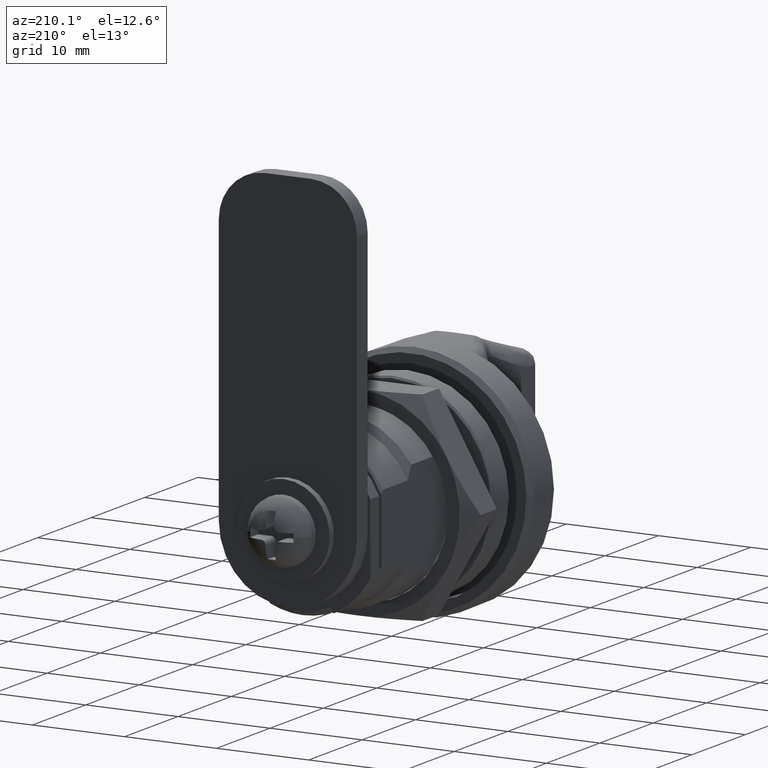
[diagram: clean part render]
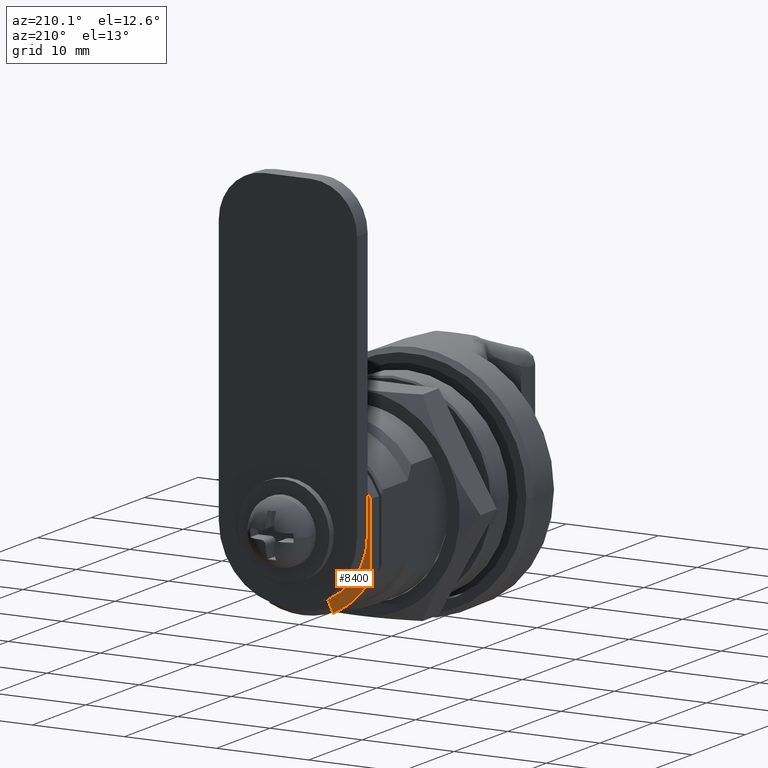
[diagram: same view with one face highlighted and labeled with its STEP entity id]
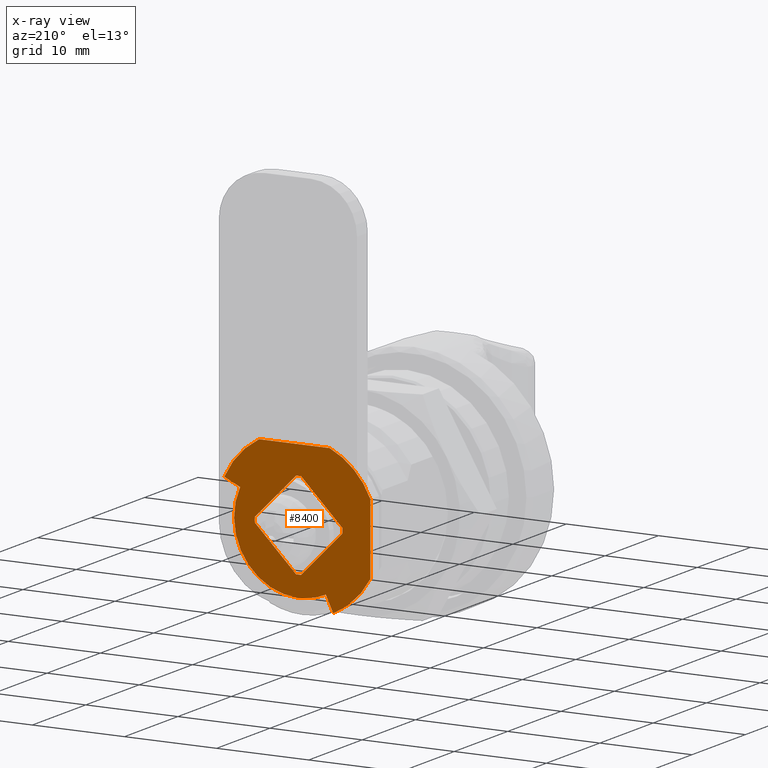
[diagram: x-ray of the same camera — body ghosted, the highlighted face saturated]
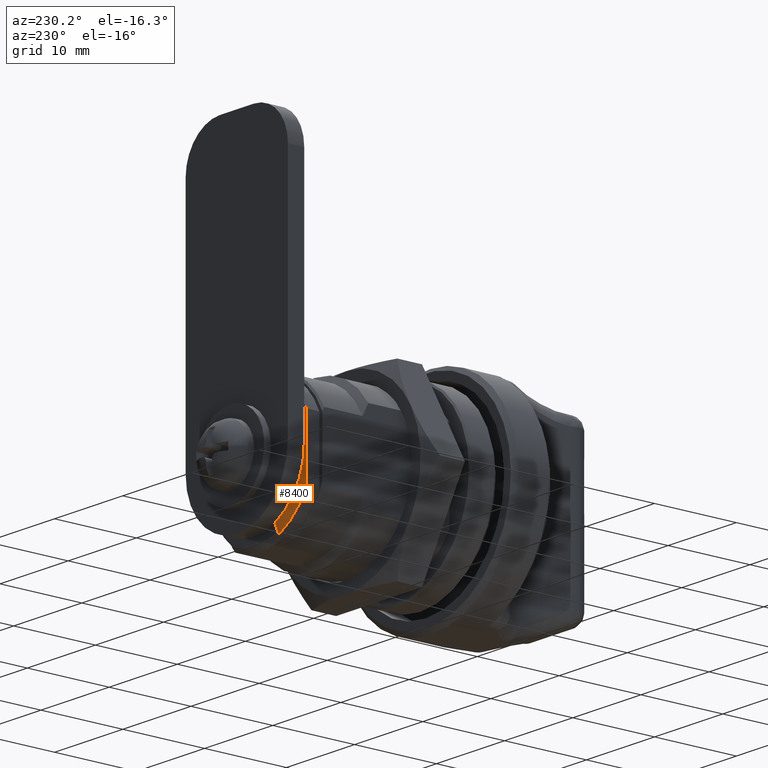
[diagram: same view with one face highlighted and labeled with its STEP entity id]
A machine part, auxiliary view. The second image highlights one B-rep face of the part: STEP entity #8400.
The next image is the same camera in x-ray: the body ghosted, the highlighted face saturated — about 0% of this face is hidden behind the body in this view.
A second angle (auxiliary view) of the same face is appended — the face is thin or edge-on in the first view.
In plain terms, the highlighted planar face has unit normal (0, -1, 0).
Its self-contained STEP definition (entity closure, byte-faithful):
#111 = ORIENTED_EDGE ( 'NONE', *, *, #915, .F. ) ;
#127 = CARTESIAN_POINT ( 'NONE',  ( 17.39999999999997000, -5.684341886080000600E-014, 4.263256414559999700E-014 ) ) ;
#185 = CARTESIAN_POINT ( 'NONE',  ( 17.39999999999997000, 0.2786377130436523100, -4.741820433639349000 ) ) ;
#284 = VERTEX_POINT ( 'NONE', #6167 ) ;
#434 = DIRECTION ( 'NONE',  ( -0.0000000000000000000, 0.4226182617408121800, -0.9063077870365973100 ) ) ;
#453 = DIRECTION ( 'NONE',  ( -0.0000000000000000000, -0.7071067811865474600, -0.7071067811865474600 ) ) ;
#475 = DIRECTION ( 'NONE',  ( 0.0000000000000000000, 5.329070518200751400E-015, -1.000000000000000000 ) ) ;
#552 = DIRECTION ( 'NONE',  ( 0.0000000000000000000, 0.0000000000000000000, -1.000000000000000000 ) ) ;
#590 = CIRCLE ( 'NONE', #1668, 4.750000000000000000 ) ;
#638 = DIRECTION ( 'NONE',  ( 1.000000000000000000, -0.0000000000000000000, -0.0000000000000000000 ) ) ;
#725 = CIRCLE ( 'NONE', #2146, 4.750000000000000000 ) ;
#763 = LINE ( 'NONE', #1708, #9327 ) ;
#780 = CARTESIAN_POINT ( 'NONE',  ( 17.39999999999997000, -5.684341886080000600E-014, 4.263256414559999700E-014 ) ) ;
#901 = AXIS2_PLACEMENT_3D ( 'NONE', #9930, #4804, #10804 ) ;
#915 = EDGE_CURVE ( 'NONE', #8992, #284, #1140, .T. ) ;
#921 = VERTEX_POINT ( 'NONE', #2441 ) ;
#930 = CIRCLE ( 'NONE', #4331, 7.000000000000000900 ) ;
#943 = CARTESIAN_POINT ( 'NONE',  ( 17.39999999999998400, 7.800000000000005200, 3.377869150810403700 ) ) ;
#978 = DIRECTION ( 'NONE',  ( 0.0000000000000000000, -1.776356839400250500E-014, -1.000000000000000000 ) ) ;
#1016 = CIRCLE ( 'NONE', #9436, 4.750000000000000900 ) ;
#1026 = EDGE_CURVE ( 'NONE', #921, #6366, #7392, .T. ) ;
#1049 = AXIS2_PLACEMENT_3D ( 'NONE', #8014, #2910, #8882 ) ;
#1118 = FACE_OUTER_BOUND ( 'NONE', #6357, .T. ) ;
#1140 = LINE ( 'NONE', #10898, #5393 ) ;
#1238 = EDGE_CURVE ( 'NONE', #7811, #8597, #590, .T. ) ;
#1424 = VERTEX_POINT ( 'NONE', #10479 ) ;
#1497 = CIRCLE ( 'NONE', #1049, 8.900000000000000400 ) ;
#1538 = AXIS2_PLACEMENT_3D ( 'NONE', #4186, #10154, #5064 ) ;
#1650 = DIRECTION ( 'NONE',  ( 0.0000000000000000000, -1.776356839400250500E-015, -1.000000000000000000 ) ) ;
#1668 = AXIS2_PLACEMENT_3D ( 'NONE', #6935, #1839, #7789 ) ;
#1708 = CARTESIAN_POINT ( 'NONE',  ( 17.39999999999999900, -0.1676805590169999900, 5.188138705700000100 ) ) ;
#1764 = ORIENTED_EDGE ( 'NONE', *, *, #1238, .F. ) ;
#1813 = CARTESIAN_POINT ( 'NONE',  ( 17.39999999999997000, 2.958327832181468300, -6.344154509258080700 ) ) ;
#1839 = DIRECTION ( 'NONE',  ( 1.000000000000000000, -0.0000000000000000000, -0.0000000000000000000 ) ) ;
#1868 = LINE ( 'NONE', #7278, #8385 ) ;
#1906 = EDGE_CURVE ( 'NONE', #8651, #7964, #6917, .T. ) ;
#1928 = VERTEX_POINT ( 'NONE', #7238 ) ;
#1971 = EDGE_CURVE ( 'NONE', #2656, #7964, #8921, .T. ) ;
#2011 = EDGE_CURVE ( 'NONE', #284, #8030, #4632, .T. ) ;
#2082 = ORIENTED_EDGE ( 'NONE', *, *, #5117, .F. ) ;
#2110 = EDGE_CURVE ( 'NONE', #2656, #6366, #1868, .T. ) ;
#2146 = AXIS2_PLACEMENT_3D ( 'NONE', #10779, #5642, #552 ) ;
#2183 = VERTEX_POINT ( 'NONE', #4812 ) ;
#2271 = DIRECTION ( 'NONE',  ( -0.0000000000000000000, -7.310596127309999300E-015, 1.000000000000000000 ) ) ;
#2315 = VECTOR ( 'NONE', #4978, 1000.000000000000100 ) ;
#2400 = VECTOR ( 'NONE', #434, 1000.000000000000100 ) ;
#2441 = CARTESIAN_POINT ( 'NONE',  ( 17.39999999999997000, 3.377869150810533000, 7.800000000000180100 ) ) ;
#2501 = DIRECTION ( 'NONE',  ( -0.0000000000000000000, 0.9063077870365973100, -0.4226182617408121800 ) ) ;
#2530 = CARTESIAN_POINT ( 'NONE',  ( 17.39999999999998400, -4.741820433639405000, 0.2786377130435964700 ) ) ;
#2575 = LINE ( 'NONE', #3326, #2315 ) ;
#2656 = VERTEX_POINT ( 'NONE', #3505 ) ;
#2696 = ORIENTED_EDGE ( 'NONE', *, *, #10238, .F. ) ;
#2769 = VERTEX_POINT ( 'NONE', #185 ) ;
#2910 = DIRECTION ( 'NONE',  ( -1.000000000000000000, 0.0000000000000000000, 0.0000000000000000000 ) ) ;
#2937 = DIRECTION ( 'NONE',  ( -1.000000000000000000, 0.0000000000000000000, 0.0000000000000000000 ) ) ;
#3050 = CARTESIAN_POINT ( 'NONE',  ( 17.39999999999997000, -5.684341886080000600E-014, 4.263256414559999700E-014 ) ) ;
#3107 = FACE_BOUND ( 'NONE', #8567, .T. ) ;
#3178 = ORIENTED_EDGE ( 'NONE', *, *, #5997, .T. ) ;
#3324 = EDGE_CURVE ( 'NONE', #2769, #1424, #2575, .T. ) ;
#3326 = CARTESIAN_POINT ( 'NONE',  ( 17.39999999999999900, 5.188138705700000100, 0.1676805590169999900 ) ) ;
#3344 = EDGE_CURVE ( 'NONE', #3357, #3662, #8844, .T. ) ;
#3357 = VERTEX_POINT ( 'NONE', #6735 ) ;
#3442 = LINE ( 'NONE', #10907, #9975 ) ;
#3505 = CARTESIAN_POINT ( 'NONE',  ( 17.39999999999997000, 7.799999999999444700, -4.286023798348232100 ) ) ;
#3662 = VERTEX_POINT ( 'NONE', #8001 ) ;
#3887 = DIRECTION ( 'NONE',  ( 0.0000000000000000000, 0.0000000000000000000, -1.000000000000000000 ) ) ;
#4099 = DIRECTION ( 'NONE',  ( -0.0000000000000000000, -1.000000000000000000, -1.918281100280000100E-015 ) ) ;
#4120 = LINE ( 'NONE', #4688, #8404 ) ;
#4186 = CARTESIAN_POINT ( 'NONE',  ( 17.39999999999997000, -5.684341886080000600E-014, 4.263256414559999700E-014 ) ) ;
#4331 = AXIS2_PLACEMENT_3D ( 'NONE', #8043, #2937, #8909 ) ;
#4632 = CIRCLE ( 'NONE', #8811, 4.750000000000000900 ) ;
#4653 = CARTESIAN_POINT ( 'NONE',  ( 17.39999999999997000, -4.741820433639402300, -0.2786377130435989700 ) ) ;
#4675 = CARTESIAN_POINT ( 'NONE',  ( 17.39999999999999900, 3.841599999220000100, -8.238337784160000500 ) ) ;
#4688 = CARTESIAN_POINT ( 'NONE',  ( 17.39999999999999900, -5.188138705700000100, -0.1676805590169999900 ) ) ;
#4709 = VERTEX_POINT ( 'NONE', #2530 ) ;
#4738 = ORIENTED_EDGE ( 'NONE', *, *, #9655, .F. ) ;
#4763 = ORIENTED_EDGE ( 'NONE', *, *, #8262, .F. ) ;
#4792 = ORIENTED_EDGE ( 'NONE', *, *, #2110, .T. ) ;
#4804 = DIRECTION ( 'NONE',  ( -1.000000000000000000, 0.0000000000000000000, 0.0000000000000000000 ) ) ;
#4812 = CARTESIAN_POINT ( 'NONE',  ( 17.39999999999998400, -4.286023798348749900, 7.800000000000001600 ) ) ;
#4882 = CIRCLE ( 'NONE', #1538, 7.000000000000000900 ) ;
#4978 = DIRECTION ( 'NONE',  ( -0.0000000000000000000, 0.7071067811865474600, 0.7071067811865474600 ) ) ;
#4985 = ORIENTED_EDGE ( 'NONE', *, *, #3324, .F. ) ;
#5064 = DIRECTION ( 'NONE',  ( 0.0000000000000000000, 3.552713678800500900E-015, -1.000000000000000000 ) ) ;
#5117 = EDGE_CURVE ( 'NONE', #8597, #4709, #4120, .T. ) ;
#5265 = AXIS2_PLACEMENT_3D ( 'NONE', #127, #6064, #978 ) ;
#5393 = VECTOR ( 'NONE', #8392, 1000.000000000000100 ) ;
#5560 = DIRECTION ( 'NONE',  ( -1.000000000000000000, 0.0000000000000000000, 0.0000000000000000000 ) ) ;
#5642 = DIRECTION ( 'NONE',  ( 1.000000000000000000, -0.0000000000000000000, -0.0000000000000000000 ) ) ;
#5736 = CARTESIAN_POINT ( 'NONE',  ( 17.39999999999997000, -5.684341886080000600E-014, 4.263256414559999700E-014 ) ) ;
#5815 = ORIENTED_EDGE ( 'NONE', *, *, #1906, .T. ) ;
#5819 = CIRCLE ( 'NONE', #5265, 4.750000000000000000 ) ;
#5925 = DIRECTION ( 'NONE',  ( -0.0000000000000000000, -0.7071067811865474600, 0.7071067811865474600 ) ) ;
#5933 = AXIS2_PLACEMENT_3D ( 'NONE', #10688, #5560, #475 ) ;
#5997 = EDGE_CURVE ( 'NONE', #921, #2183, #3442, .T. ) ;
#6064 = DIRECTION ( 'NONE',  ( -1.000000000000000000, 0.0000000000000000000, 0.0000000000000000000 ) ) ;
#6167 = CARTESIAN_POINT ( 'NONE',  ( 17.39999999999998400, -0.2786377130436489800, -4.741820433639352600 ) ) ;
#6353 = EDGE_CURVE ( 'NONE', #1928, #1424, #5819, .T. ) ;
#6357 = EDGE_LOOP ( 'NONE', ( #6559, #7017, #4738, #4763, #5815, #7858, #4792, #7010, #3178 ) ) ;
#6366 = VERTEX_POINT ( 'NONE', #943 ) ;
#6482 = PLANE ( 'NONE',  #901 ) ;
#6559 = ORIENTED_EDGE ( 'NONE', *, *, #8907, .F. ) ;
#6563 = VECTOR ( 'NONE', #2501, 1000.000000000000100 ) ;
#6607 = DIRECTION ( 'NONE',  ( 0.0000000000000000000, 0.0000000000000000000, -1.000000000000000000 ) ) ;
#6735 = CARTESIAN_POINT ( 'NONE',  ( 17.39999999999998400, -8.066139304628915600, 3.761302529489429300 ) ) ;
#6740 = DIRECTION ( 'NONE',  ( -1.000000000000000000, 0.0000000000000000000, 0.0000000000000000000 ) ) ;
#6917 = LINE ( 'NONE', #4675, #2400 ) ;
#6935 = CARTESIAN_POINT ( 'NONE',  ( 17.39999999999997000, -5.684341886080000600E-014, 4.263256414559999700E-014 ) ) ;
#7010 = ORIENTED_EDGE ( 'NONE', *, *, #1026, .F. ) ;
#7017 = ORIENTED_EDGE ( 'NONE', *, *, #3344, .T. ) ;
#7238 = CARTESIAN_POINT ( 'NONE',  ( 17.39999999999997000, 4.741820433639343700, 0.2786377130436566400 ) ) ;
#7278 = CARTESIAN_POINT ( 'NONE',  ( 17.39999999999999900, 7.799999999999999800, 4.144258445730000200 ) ) ;
#7392 = CIRCLE ( 'NONE', #8161, 8.500000000000000000 ) ;
#7467 = CARTESIAN_POINT ( 'NONE',  ( 17.39999999999998400, 0.2786377130436075200, 4.741820433639393400 ) ) ;
#7624 = CARTESIAN_POINT ( 'NONE',  ( 17.39999999999998400, 3.761302529491497900, -8.066139304627878200 ) ) ;
#7660 = CARTESIAN_POINT ( 'NONE',  ( 17.39999999999997000, -5.684341886080000600E-014, -4.749999999999958300 ) ) ;
#7676 = ORIENTED_EDGE ( 'NONE', *, *, #10699, .F. ) ;
#7772 = CARTESIAN_POINT ( 'NONE',  ( 17.39999999999997000, -0.2786377130436030700, 4.741820433639397900 ) ) ;
#7789 = DIRECTION ( 'NONE',  ( 0.0000000000000000000, 0.0000000000000000000, -1.000000000000000000 ) ) ;
#7811 = VERTEX_POINT ( 'NONE', #7467 ) ;
#7858 = ORIENTED_EDGE ( 'NONE', *, *, #1971, .F. ) ;
#7964 = VERTEX_POINT ( 'NONE', #7624 ) ;
#8001 = CARTESIAN_POINT ( 'NONE',  ( 17.39999999999998400, -6.344154509258719300, 2.958327832181578000 ) ) ;
#8014 = CARTESIAN_POINT ( 'NONE',  ( 17.39999999999997000, -5.684341886080000600E-014, 4.263256414559999700E-014 ) ) ;
#8019 = EDGE_CURVE ( 'NONE', #1928, #7811, #763, .T. ) ;
#8030 = VERTEX_POINT ( 'NONE', #7660 ) ;
#8043 = CARTESIAN_POINT ( 'NONE',  ( 17.39999999999997000, -5.684341886080000600E-014, 4.263256414559999700E-014 ) ) ;
#8161 = AXIS2_PLACEMENT_3D ( 'NONE', #780, #6740, #1650 ) ;
#8178 = ORIENTED_EDGE ( 'NONE', *, *, #2011, .F. ) ;
#8262 = EDGE_CURVE ( 'NONE', #8651, #10856, #4882, .T. ) ;
#8385 = VECTOR ( 'NONE', #2271, 1000.000000000000000 ) ;
#8392 = DIRECTION ( 'NONE',  ( -0.0000000000000000000, 0.7071067811865474600, -0.7071067811865474600 ) ) ;
#8400 = ADVANCED_FACE ( 'NONE', ( #3107, #1118 ), #6482, .F. ) ;
#8404 = VECTOR ( 'NONE', #453, 1000.000000000000100 ) ;
#8567 = EDGE_LOOP ( 'NONE', ( #10990, #10704, #4985, #2696, #8178, #111, #7676, #2082, #1764 ) ) ;
#8597 = VERTEX_POINT ( 'NONE', #7772 ) ;
#8651 = VERTEX_POINT ( 'NONE', #1813 ) ;
#8811 = AXIS2_PLACEMENT_3D ( 'NONE', #3050, #9015, #3887 ) ;
#8844 = LINE ( 'NONE', #10131, #6563 ) ;
#8882 = DIRECTION ( 'NONE',  ( 0.0000000000000000000, -1.776356839400250100E-015, -1.000000000000000000 ) ) ;
#8907 = EDGE_CURVE ( 'NONE', #3357, #2183, #1497, .T. ) ;
#8909 = DIRECTION ( 'NONE',  ( 0.0000000000000000000, 0.0000000000000000000, -1.000000000000000000 ) ) ;
#8921 = CIRCLE ( 'NONE', #5933, 8.900000000000000400 ) ;
#8992 = VERTEX_POINT ( 'NONE', #4653 ) ;
#9015 = DIRECTION ( 'NONE',  ( 1.000000000000000000, -0.0000000000000000000, -0.0000000000000000000 ) ) ;
#9327 = VECTOR ( 'NONE', #5925, 1000.000000000000100 ) ;
#9436 = AXIS2_PLACEMENT_3D ( 'NONE', #5736, #638, #6607 ) ;
#9480 = CARTESIAN_POINT ( 'NONE',  ( 17.39999999999997000, -5.684341886080000600E-014, -6.999999999999958300 ) ) ;
#9655 = EDGE_CURVE ( 'NONE', #10856, #3662, #930, .T. ) ;
#9930 = CARTESIAN_POINT ( 'NONE',  ( 17.39999999999999900, -10.03715775360000100, -10.03715775360000100 ) ) ;
#9975 = VECTOR ( 'NONE', #4099, 1000.000000000000000 ) ;
#10131 = CARTESIAN_POINT ( 'NONE',  ( 17.39999999999999900, -6.171956029720000500, 2.878030362450000100 ) ) ;
#10154 = DIRECTION ( 'NONE',  ( -1.000000000000000000, 0.0000000000000000000, 0.0000000000000000000 ) ) ;
#10238 = EDGE_CURVE ( 'NONE', #8030, #2769, #1016, .T. ) ;
#10479 = CARTESIAN_POINT ( 'NONE',  ( 17.39999999999998400, 4.741820433639340100, -0.2786377130436602500 ) ) ;
#10688 = CARTESIAN_POINT ( 'NONE',  ( 17.39999999999997000, -5.684341886080000600E-014, 4.263256414559999700E-014 ) ) ;
#10699 = EDGE_CURVE ( 'NONE', #4709, #8992, #725, .T. ) ;
#10704 = ORIENTED_EDGE ( 'NONE', *, *, #6353, .T. ) ;
#10779 = CARTESIAN_POINT ( 'NONE',  ( 17.39999999999997000, -5.684341886080000600E-014, 4.263256414559999700E-014 ) ) ;
#10804 = DIRECTION ( 'NONE',  ( 0.0000000000000000000, 0.0000000000000000000, 1.000000000000000000 ) ) ;
#10856 = VERTEX_POINT ( 'NONE', #9480 ) ;
#10898 = CARTESIAN_POINT ( 'NONE',  ( 17.39999999999999900, 0.1676805590169999900, -5.188138705700000100 ) ) ;
#10907 = CARTESIAN_POINT ( 'NONE',  ( 17.39999999999999900, -5.052413093260000200, 7.799999999999999800 ) ) ;
#10990 = ORIENTED_EDGE ( 'NONE', *, *, #8019, .F. ) ;